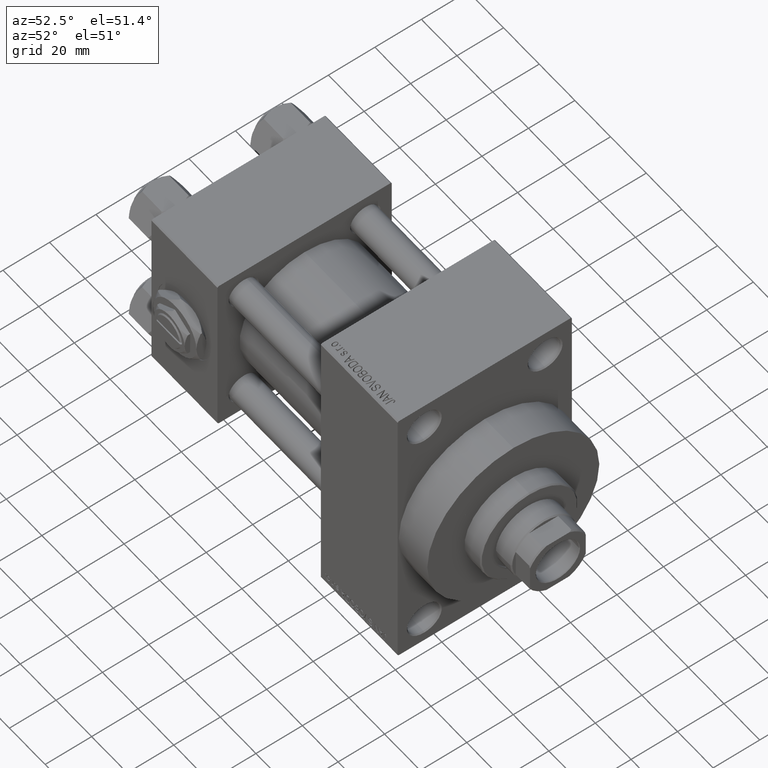
[diagram: clean part render]
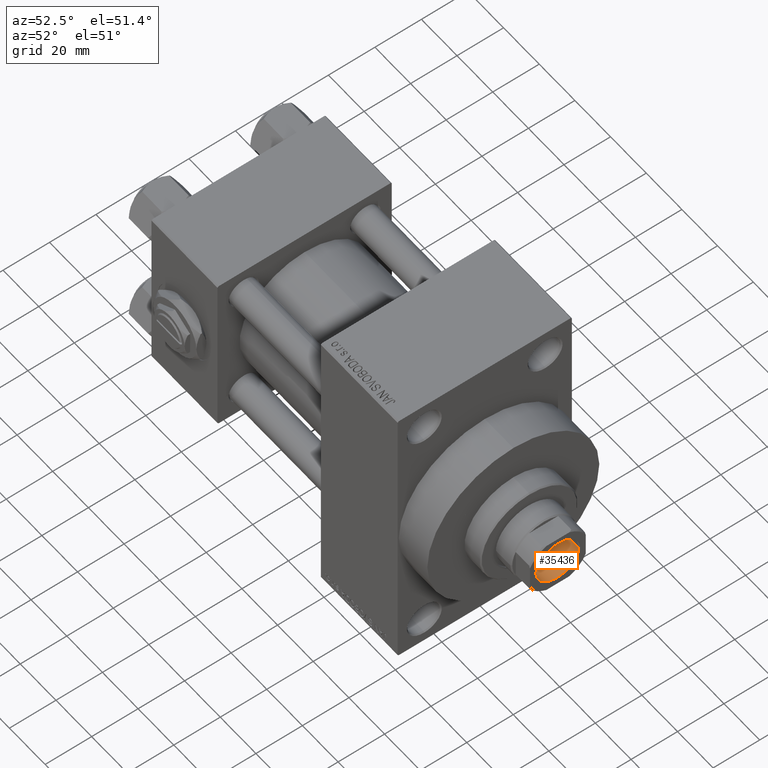
[diagram: same view with one face highlighted and labeled with its STEP entity id]
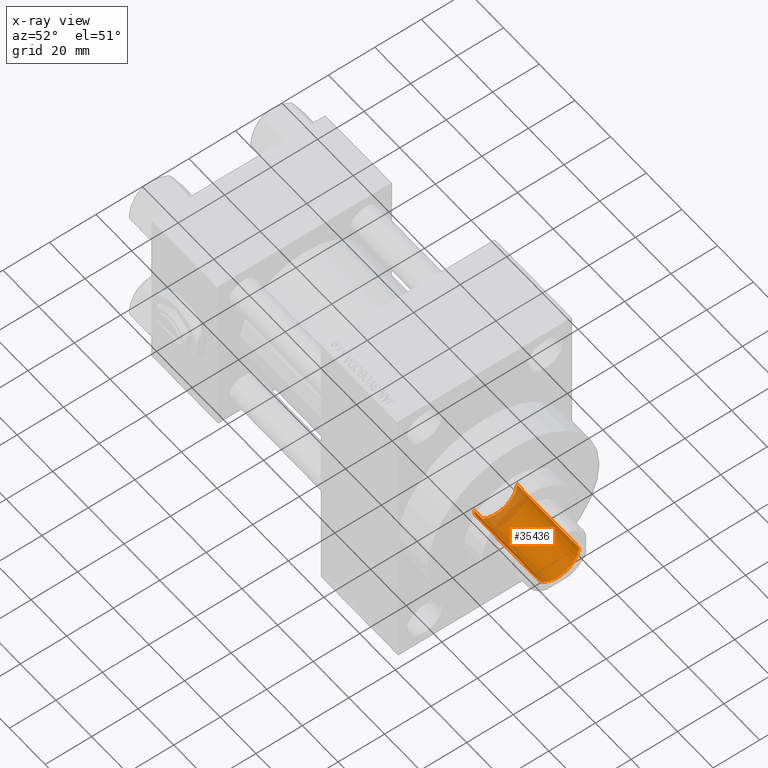
[diagram: x-ray of the same camera — body ghosted, the highlighted face saturated]
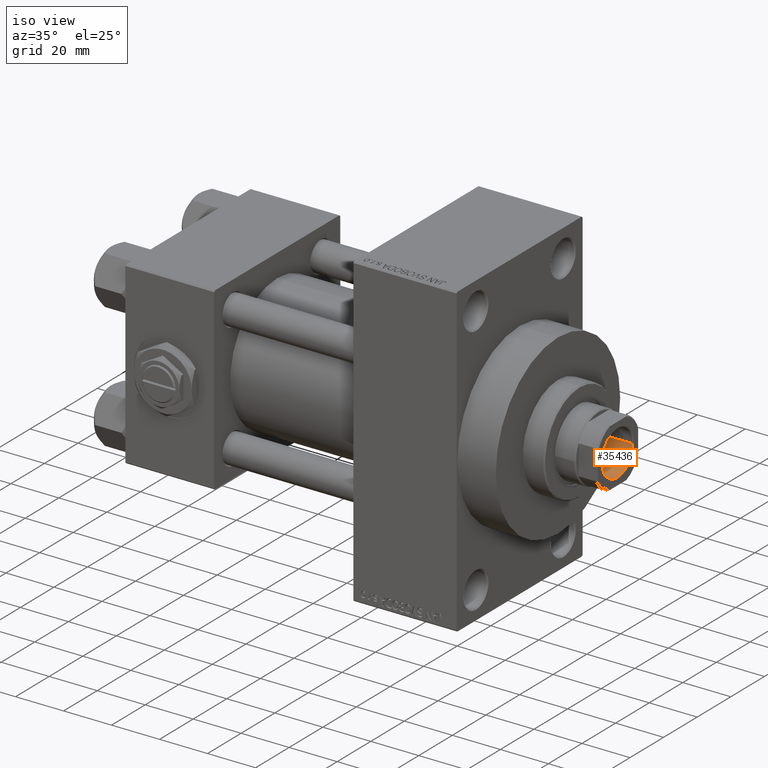
[diagram: same view with one face highlighted and labeled with its STEP entity id]
A machine part, auxiliary view. The second image highlights one B-rep face of the part: STEP entity #35436.
The next image is the same camera in x-ray: the body ghosted, the highlighted face saturated — about 13% of this face is hidden behind the body in this view.
A second angle (iso view) of the same face is appended — the face is thin or edge-on in the first view.
In plain terms, the highlighted cylindrical surface (edge-blend (fillet) strip) has radius 9.25 mm, axis along (1, 0, 0).
Its self-contained STEP definition (entity closure, byte-faithful):
#5657 = EDGE_CURVE ( 'NONE', #16772, #38400, #32480, .T. ) ;
#5924 = ORIENTED_EDGE ( 'NONE', *, *, #15194, .F. ) ;
#7113 = DIRECTION ( 'NONE',  ( 1.000000000000000000, 0.000000000000000000, 0.000000000000000000 ) ) ;
#8456 = CARTESIAN_POINT ( 'NONE',  ( 0.000000000000000000, 0.000000000000000000, 142.0000000000000284 ) ) ;
#10415 = DIRECTION ( 'NONE',  ( -0.000000000000000000, -0.000000000000000000, 1.000000000000000000 ) ) ;
#15194 = EDGE_CURVE ( 'NONE', #25230, #16772, #34215, .T. ) ;
#16772 = VERTEX_POINT ( 'NONE', #29261 ) ;
#17112 = LINE ( 'NONE', #32240, #26146 ) ;
#17259 = EDGE_LOOP ( 'NONE', ( #25304, #5924, #23045, #40678 ) ) ;
#17328 = VECTOR ( 'NONE', #10415, 1000.000000000000000 ) ;
#17352 = AXIS2_PLACEMENT_3D ( 'NONE', #8456, #42672, #34255 ) ;
#17502 = EDGE_CURVE ( 'NONE', #45353, #38400, #17652, .T. ) ;
#17652 = CIRCLE ( 'NONE', #38253, 9.249999999999994671 ) ;
#19128 = CYLINDRICAL_SURFACE ( 'NONE', #17352, 9.249999999999994671 ) ;
#21643 = DIRECTION ( 'NONE',  ( 0.000000000000000000, 0.000000000000000000, 1.000000000000000000 ) ) ;
#22615 = CARTESIAN_POINT ( 'NONE',  ( -9.249999999999994671, 1.132798289211300909E-15, 141.7000000000000171 ) ) ;
#23045 = ORIENTED_EDGE ( 'NONE', *, *, #38623, .T. ) ;
#23136 = AXIS2_PLACEMENT_3D ( 'NONE', #44555, #45283, #7113 ) ;
#24795 = CARTESIAN_POINT ( 'NONE',  ( -9.249999999999994671, 1.132798289211300909E-15, 142.0000000000000284 ) ) ;
#25230 = VERTEX_POINT ( 'NONE', #31027 ) ;
#25304 = ORIENTED_EDGE ( 'NONE', *, *, #5657, .F. ) ;
#26146 = VECTOR ( 'NONE', #43642, 1000.000000000000000 ) ;
#26345 = CARTESIAN_POINT ( 'NONE',  ( 0.000000000000000000, 0.000000000000000000, 141.7000000000000171 ) ) ;
#29261 = CARTESIAN_POINT ( 'NONE',  ( -9.249999999999992895, 1.132798289211300712E-15, 107.0000000000000142 ) ) ;
#31027 = CARTESIAN_POINT ( 'NONE',  ( 9.249999999999992895, 0.000000000000000000, 107.0000000000000142 ) ) ;
#32240 = CARTESIAN_POINT ( 'NONE',  ( 9.249999999999994671, 0.000000000000000000, 142.0000000000000284 ) ) ;
#32480 = LINE ( 'NONE', #24795, #17328 ) ;
#32806 = DIRECTION ( 'NONE',  ( 1.000000000000000000, 0.000000000000000000, 0.000000000000000000 ) ) ;
#34215 = CIRCLE ( 'NONE', #23136, 9.249999999999992895 ) ;
#34255 = DIRECTION ( 'NONE',  ( 1.000000000000000000, 0.000000000000000000, 0.000000000000000000 ) ) ;
#35436 = ADVANCED_FACE ( 'NONE', ( #42919 ), #19128, .F. ) ;
#38253 = AXIS2_PLACEMENT_3D ( 'NONE', #26345, #21643, #32806 ) ;
#38400 = VERTEX_POINT ( 'NONE', #22615 ) ;
#38623 = EDGE_CURVE ( 'NONE', #25230, #45353, #17112, .T. ) ;
#38995 = CARTESIAN_POINT ( 'NONE',  ( 9.249999999999994671, 0.000000000000000000, 141.7000000000000171 ) ) ;
#40678 = ORIENTED_EDGE ( 'NONE', *, *, #17502, .T. ) ;
#42672 = DIRECTION ( 'NONE',  ( -0.000000000000000000, -0.000000000000000000, 1.000000000000000000 ) ) ;
#42919 = FACE_OUTER_BOUND ( 'NONE', #17259, .T. ) ;
#43642 = DIRECTION ( 'NONE',  ( -0.000000000000000000, -0.000000000000000000, 1.000000000000000000 ) ) ;
#44555 = CARTESIAN_POINT ( 'NONE',  ( 0.000000000000000000, 0.000000000000000000, 107.0000000000000142 ) ) ;
#45283 = DIRECTION ( 'NONE',  ( -0.000000000000000000, -0.000000000000000000, 1.000000000000000000 ) ) ;
#45353 = VERTEX_POINT ( 'NONE', #38995 ) ;